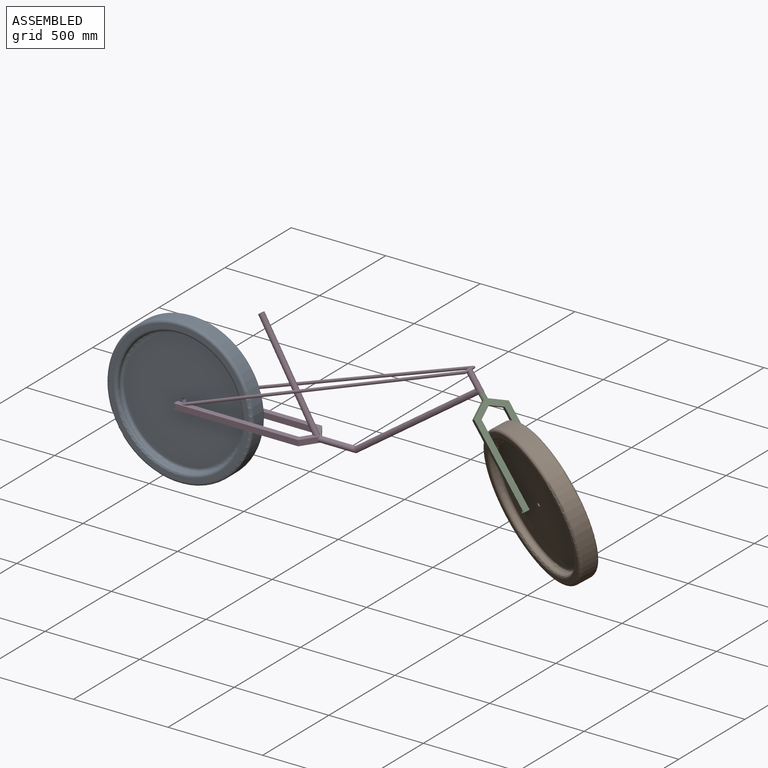
[diagram: assembled view]
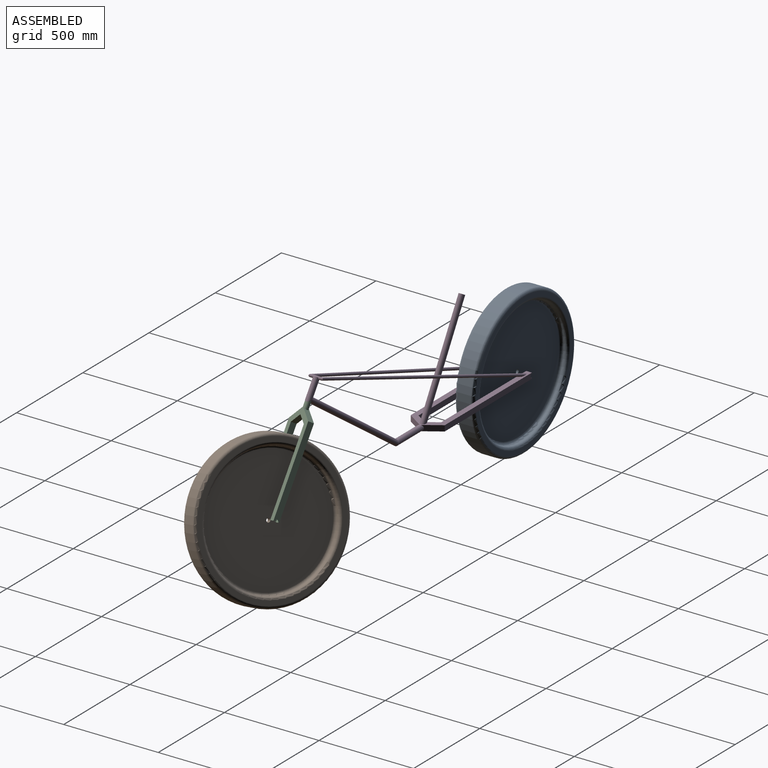
[diagram: assembled view, second angle]
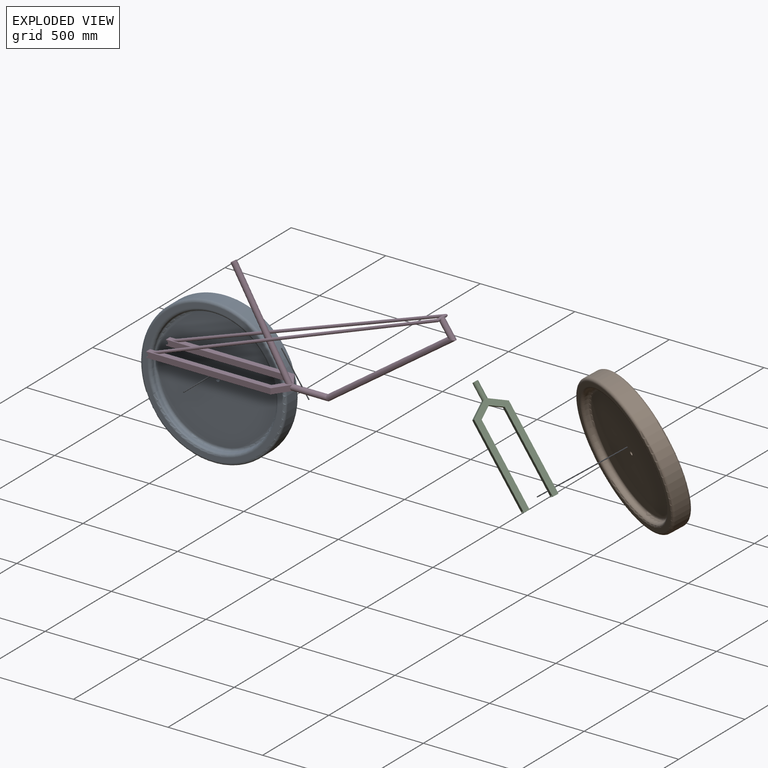
[diagram: exploded view]
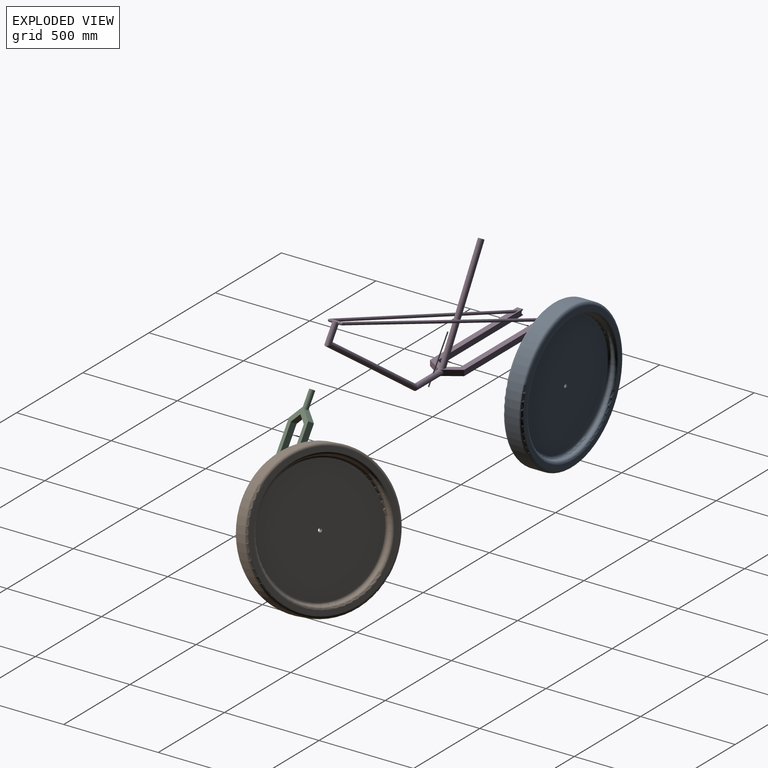
[diagram: exploded view, second angle]
ASSEMBLY  parts=4 mates=3
PART A: 14 faces, bbox 833.9x101x833.9 mm
  f0: cylinder r=10mm len=25mm, axis (0,-1,0), area 1570.8mm2, adj f1,f2
  f1: plane 630.4x630.4mm, normal (0,1,0), area 311806.3mm2, adj f0,f13
  f2: plane 630.4x630.4mm, normal (0,-1,0), area 311806.3mm2, adj f0,f8
  f3: cylinder r=330.2mm len=660.4mm, axis (0,1,0), area 16597.7mm2, adj f9,f13
  f4: cylinder r=330.2mm len=660.4mm, axis (0,1,0), area 16597.7mm2, adj f8,f11
  f5: cylinder r=385.2mm len=770.4mm, axis (0,1,0), area 171840.1mm2, adj f10,f12
  f6: plane 740.4x740.4mm, normal (0,-1,0), area 56187.4mm2, adj f11,f12
  f7: plane 740.4x740.4mm, normal (0,1,0), area 56187.4mm2, adj f9,f10
  f8: torus R=315.2mm, axis (0,-1,0), area 48077.2mm2, adj f2,f4
  f9: torus R=345.2mm, axis (0,-1,0), area 49691.1mm2, adj f3,f7
  f10: torus R=370.2mm, axis (0,-1,0), area 56219.6mm2, adj f5,f7
  f11: torus R=345.2mm, axis (0,-1,0), area 49691.1mm2, adj f4,f6
  f12: torus R=370.2mm, axis (0,-1,0), area 56219.6mm2, adj f5,f6
  f13: torus R=315.2mm, axis (0,-1,0), area 48077.2mm2, adj f1,f3
PART B: same geometry as A
PART C: 39 faces, bbox 180x30x599.7 mm
  f0: plane 30x5mm, normal (0,0,-1), area 72mm2, adj f2,f3,f10,f14,f15,f23,f37,f38
  f1: plane 30x5mm, normal (0,0,-1), area 72mm2, adj f8,f9,f11,f20,f21,f22,f35,f36
  f2: plane 458.05x30mm, normal (1,0,0), area 13584.4mm2, adj f0,f5,f8,f10,f12,f38
  f3: plane 441.95x30mm, normal (-1,0,0), area 13101.4mm2, adj f0,f4,f8,f10,f12,f37
  f4: plane 60x39.8mm, normal (-0.55,0,-0.83), area 2160mm2, adj f3,f6,f8,f10
  f5: plane 90x59.7mm, normal (0.55,0,0.83), area 2870.5mm2, adj f2,f7,f8,f10,f31
  f6: plane 60x39.8mm, normal (0.55,0,-0.83), area 2160mm2, adj f4,f8,f9,f10
  f7: plane 90x59.7mm, normal (-0.55,0,0.83), area 2870.5mm2, adj f5,f8,f10,f11,f31
  f8: plane 517.75x180mm, normal (0,1,0), area 32400mm2, adj f1,f2,f3,f4,f5,f6,f7,f9
  f9: plane 441.95x30mm, normal (1,0,0), area 13101.4mm2, adj f1,f6,f8,f10,f13,f36
  f10: plane 517.75x180mm, normal (0,-1,0), area 32400mm2, adj f0,f2,f3,f4,f5,f6,f7,f9
  f11: plane 458.05x30mm, normal (-1,0,0), area 13584.4mm2, adj f1,f7,f8,f10,f13,f35
  f12: plane 30x5mm, normal (0,0,-1), area 72mm2, adj f2,f3,f8,f14,f15,f21,f37,f38
  f13: plane 30x5mm, normal (0,0,-1), area 72mm2, adj f9,f10,f11,f20,f22,f23,f35,f36
  f14: plane 456.98x26mm, normal (-1,0,0), area 11724.3mm2, adj f0,f12,f17,f21,f23,f38
  f15: plane 443.02x26mm, normal (1,0,0), area 11361.5mm2, adj f0,f12,f16,f21,f23,f37
  f16: plane 62x41.13mm, normal (0.55,0,0.83), area 1934.4mm2, adj f15,f18,f21,f23
  f17: plane 82.8x54.93mm, normal (-0.55,0,-0.83), area 2384.5mm2, adj f14,f21,f23,f25
  f18: plane 62x41.13mm, normal (-0.55,0,0.83), area 1934.4mm2, adj f16,f20,f21,f23
  f19: plane 82.8x54.93mm, normal (0.55,0,-0.83), area 2384.5mm2, adj f21,f22,f23,f24
  f20: plane 443.02x26mm, normal (-1,0,0), area 11361.5mm2, adj f1,f13,f18,f21,f23,f36
  f21: plane 511.9x176mm, normal (0,-1,0), area 27935.8mm2, adj f1,f12,f14,f15,f16,f17,f18,f19
  f22: plane 456.98x26mm, normal (1,0,0), area 11724.3mm2, adj f1,f13,f19,f21,f23,f35
  f23: plane 511.9x176mm, normal (0,1,0), area 27935.8mm2, adj f0,f13,f14,f15,f16,f17,f18,f19
  f24: cylinder r=14mm len=26mm, axis (0,0,-1), area 278.6mm2, adj f19,f21,f23,f26
  f25: cylinder r=14mm len=26mm, axis (0,0,-1), area 278.6mm2, adj f17,f21,f23,f26
  f26: plane 28x26mm, normal (0,0,-1), area 149.4mm2, adj f21,f23,f24,f25,f27
  f27: cylinder r=12mm len=24mm, axis (0,0,-1), area 794.1mm2, adj f26,f28,f29
  f28: plane 24x12mm, normal (0.55,0,-0.83), area 271.4mm2, adj f27,f29
  f29: plane 24x12mm, normal (-0.55,0,-0.83), area 271.4mm2, adj f27,f28
  f30: cylinder r=12mm len=89.99mm, axis (0,0,-1), area 6564.7mm2, adj f32,f33,f34
  f31: cylinder r=14mm len=91.32mm, axis (0,0,-1), area 7733.1mm2, adj f5,f7,f32
  f32: plane 28x28mm, normal (0,0,1), area 163.4mm2, adj f30,f31
  f33: plane 24x12mm, normal (-0.55,0,0.83), area 271.4mm2, adj f30,f34
  f34: plane 24x12mm, normal (0.55,0,0.83), area 271.4mm2, adj f30,f33
  f35: cylinder r=10mm len=20mm, axis (1,0,0), area 62.8mm2, adj f1,f11,f13,f22
  f36: cylinder r=10mm len=20mm, axis (1,0,0), area 62.8mm2, adj f1,f9,f13,f20
  f37: cylinder r=10mm len=20mm, axis (1,0,0), area 62.8mm2, adj f0,f3,f12,f15
  f38: cylinder r=10mm len=20mm, axis (1,0,0), area 62.8mm2, adj f0,f2,f12,f14
PART D: 77 faces, bbox 1578.5x182.3x567.6 mm
  f0: plane 30x5mm, normal (-1,0,0), area 72mm2, adj f10,f11,f13,f22,f23,f32,f56,f57
  f1: plane 30x5mm, normal (-1,0,0), area 72mm2, adj f12,f18,f19,f24,f29,f30,f55,f58
  f2: plane 25.98x6.14mm, normal (-0.57,0,0.82), area 56.3mm2, adj f5,f8,f46
  f3: cylinder r=13mm len=194.75mm, axis (1,0,0), area 15314.4mm2, adj f6,f42,f43
  f4: cylinder r=15mm len=196.72mm, axis (1,0,0), area 17750.1mm2, adj f9,f25,f27
  f5: cylinder r=13mm len=107.48mm, axis (-0.57,0,0.82), area 7983.2mm2, adj f2,f6,f7,f46
  f6: cylinder r=13mm len=684.25mm, axis (0.82,0,0.57), area 65345.1mm2, adj f3,f5
  f7: plane 25.98x6.14mm, normal (-0.57,0,0.82), area 56.3mm2, adj f5,f8,f46
  f8: cylinder r=15mm len=111.42mm, axis (-0.57,0,0.82), area 9242.2mm2, adj f2,f7,f9,f46
  f9: cylinder r=15mm len=688.7mm, axis (0.82,0,0.57), area 75398.3mm2, adj f4,f8
  f10: plane 711.95x81.83mm, normal (0,0,-1), area 18333.7mm2, adj f0,f11,f13,f14,f15,f33,f35,f48
  f11: plane 657.23x26mm, normal (0,-1,0), area 16930.8mm2, adj f0,f10,f12,f14,f20,f57
  f12: plane 712.95x178.31mm, normal (0,0,1), area 38161mm2, adj f1,f11,f13,f14,f15,f16,f17,f18
  f13: plane 643.27x26mm, normal (0,1,0), area 16568mm2, adj f0,f10,f12,f15,f20,f56
  f14: plane 80.52x53.41mm, normal (-0.83,-0.55,0), area 2345.8mm2, adj f10,f11,f12,f35
  f15: plane 63.84x42.97mm, normal (0.83,0.55,0), area 1838.3mm2, adj f10,f12,f13,f17,f33
  f16: plane 80.52x53.41mm, normal (-0.83,0.55,0), area 2345.8mm2, adj f12,f19,f31,f34
  f17: plane 63.84x42.97mm, normal (0.83,-0.55,0), area 1838.3mm2, adj f12,f15,f18,f31,f33
  f18: plane 643.27x26mm, normal (0,-1,0), area 16568mm2, adj f1,f12,f17,f21,f31,f55
  f19: plane 657.23x26mm, normal (0,1,0), area 16930.8mm2, adj f1,f12,f16,f21,f31,f58
  f20: plane 30x5mm, normal (-1,0,0), area 72mm2, adj f11,f12,f13,f22,f23,f24,f56,f57
  f21: plane 30x5mm, normal (-1,0,0), area 72mm2, adj f18,f19,f29,f30,f31,f32,f55,f58
  f22: plane 658.3x30mm, normal (0,1,0), area 19591.9mm2, adj f0,f20,f24,f25,f32,f57
  f23: plane 642.2x30mm, normal (0,-1,0), area 19108.9mm2, adj f0,f20,f24,f26,f32,f56
  f24: plane 718x180mm, normal (0,0,-1), area 44415mm2, adj f1,f20,f22,f23,f25,f26,f27,f28
  f25: plane 90x59.7mm, normal (0.83,0.55,0), area 2815.9mm2, adj f4,f22,f24,f32
  f26: plane 61.53x41.33mm, normal (-0.83,-0.55,0), area 2085.7mm2, adj f23,f24,f28,f32,f38
  f27: plane 90x59.7mm, normal (0.83,-0.55,0), area 2815.9mm2, adj f4,f24,f30,f32
  f28: plane 61.53x41.33mm, normal (-0.83,0.55,0), area 2085.7mm2, adj f24,f26,f29,f32,f38
  f29: plane 642.2x30mm, normal (0,1,0), area 19108.9mm2, adj f1,f21,f24,f28,f32,f55
  f30: plane 658.3x30mm, normal (0,-1,0), area 19591.9mm2, adj f1,f21,f24,f27,f32,f58
  f31: plane 711.95x81.83mm, normal (0,0,-1), area 18333.7mm2, adj f16,f17,f18,f19,f21,f33,f34,f47
  f32: plane 718x180mm, normal (0,0,1), area 42629mm2, adj f0,f21,f22,f23,f25,f26,f27,f28
  f33: cylinder r=15mm len=39.55mm, axis (0.5,0,-0.87), area 1255.1mm2, adj f10,f12,f15,f17,f31,f34,f35
  f34: cylinder r=15mm len=26mm, axis (1,0,0), area 232mm2, adj f12,f16,f31,f33
  f35: cylinder r=15mm len=26mm, axis (1,0,0), area 232mm2, adj f10,f12,f14,f33
  f36: cylinder r=13mm len=524.18mm, axis (0.5,0,-0.87), area 47666.5mm2, adj f37,f39,f40,f41
  f37: plane 30x25.98mm, normal (-0.5,0,0.87), area 175.9mm2, adj f36,f38
  f38: cylinder r=15mm len=527.18mm, axis (0.5,0,-0.87), area 55054.7mm2, adj f26,f28,f32,f37
  f39: plane 28.33x26mm, normal (0,0,1), area 575.5mm2, adj f36,f40,f41
  f40: plane 10.84x7.02mm, normal (-0.83,-0.55,0), area 39mm2, adj f36,f39,f41
  f41: plane 10.84x7.02mm, normal (-0.83,0.55,0), area 39mm2, adj f36,f39,f40
  f42: plane 26x13mm, normal (0.83,-0.55,0), area 318.6mm2, adj f3,f43
  f43: plane 26x13mm, normal (0.83,0.55,0), area 318.6mm2, adj f3,f42
  f44: cylinder r=7.5mm len=1487.93mm, axis (-0.94,0.03,-0.34), area 72984.8mm2, adj f32,f46
  f45: cylinder r=7.5mm len=1488.19mm, axis (0.94,0.03,0.34), area 72984.4mm2, adj f32,f46
  f46: cylinder r=7.5mm len=74.58mm, axis (0,1,0), area 2725mm2, adj f2,f5,f7,f8,f44,f45
  f47: cylinder r=7.5mm len=54.45mm, axis (0.94,0.03,0.34), area 1409.3mm2, adj f31,f52
  f48: cylinder r=7.5mm len=54.71mm, axis (-0.94,0.03,-0.34), area 1409mm2, adj f10,f49
  f49: cylinder r=10mm len=15.01mm, axis (0,-1,0), area 93.9mm2, adj f48,f51
  f50: plane 32.4x11.04mm, normal (0,0,-1), area 280mm2, adj f51
  f51: cylinder r=5.5mm len=46.43mm, axis (-0.94,0.03,-0.34), area 1005.7mm2, adj f49,f50
  f52: cylinder r=10mm len=15.01mm, axis (0,-1,0), area 94mm2, adj f47,f54
  f53: plane 32.4x11.04mm, normal (0,0,-1), area 280mm2, adj f54
  f54: cylinder r=5.5mm len=46.24mm, axis (0.94,0.03,0.34), area 1005.7mm2, adj f52,f53
  f55: cylinder r=10mm len=20mm, axis (0,-1,0), area 62.8mm2, adj f1,f18,f21,f29
  f56: cylinder r=10mm len=20mm, axis (0,-1,0), area 62.8mm2, adj f0,f13,f20,f23
  f57: cylinder r=10mm len=20mm, axis (0,-1,0), area 62.8mm2, adj f0,f11,f20,f22
  f58: cylinder r=10mm len=20mm, axis (0,-1,0), area 62.8mm2, adj f1,f19,f21,f30
  f59: cylinder r=5.5mm len=1479.53mm, axis (-0.94,0.03,-0.34), area 53524.4mm2, adj f61,f63
  f60: cylinder r=5.5mm len=1479.72mm, axis (0.94,0.03,0.34), area 53524.2mm2, adj f61,f62
  f61: cylinder r=5.5mm len=70.7mm, axis (0,1,0), area 2001.4mm2, adj f59,f60,f64,f65,f66,f67,f68,f69
  f62: plane 32.4x11.04mm, normal (0,0,1), area 280mm2, adj f60
  f63: plane 32.4x11.04mm, normal (0,0,1), area 280mm2, adj f59
  f64: cylinder r=15mm len=12.17mm, axis (-0.57,0,0.82), area 48.3mm2, adj f61,f65
  f65: plane 9.01x6.31mm, normal (-0.57,0,0.82), area 22.6mm2, adj f61,f64,f66
  f66: cylinder r=13mm len=12.17mm, axis (-0.57,0,0.82), area 48.6mm2, adj f61,f65
  f67: cylinder r=15mm len=12.17mm, axis (-0.57,0,0.82), area 48.3mm2, adj f61,f68
  f68: plane 9.01x6.31mm, normal (-0.57,0,0.82), area 22.6mm2, adj f61,f67,f69
  f69: cylinder r=13mm len=12.17mm, axis (-0.57,0,0.82), area 48.6mm2, adj f61,f68
  f70: plane 27.71x26mm, normal (0,0,-1), area 559.4mm2, adj f71,f72,f73
  f71: plane 13.31x8.27mm, normal (0.83,0.55,0), area 55.8mm2, adj f70,f72,f73
  f72: plane 13.31x8.27mm, normal (0.83,-0.55,0), area 55.8mm2, adj f70,f71,f73
  f73: cylinder r=13mm len=38.09mm, axis (0.5,0,-0.87), area 1122.1mm2, adj f70,f71,f72,f74
  f74: cylinder r=13mm len=26mm, axis (1,0,0), area 825.8mm2, adj f73,f75,f76
  f75: plane 26x13mm, normal (-0.83,-0.55,0), area 318.6mm2, adj f74,f76
  f76: plane 26x13mm, normal (-0.83,0.55,0), area 318.6mm2, adj f74,f75
PLACE A rot(axis=(0,-1,0),19.7deg) t=(-840.19,47.42,30.8)mm
PLACE B rot(axis=(0.13,-0.81,-0.57),53.9deg) t=(1036.15,50.18,34.37)mm
PLACE C rot(axis=(0.3,-0.17,-0.94),123.6deg) t=(748.02,47.1,442.7)mm
PLACE D t=(59.81,47.1,30.8)mm fixed
MATE cylindrical C.f24 <-> D.f5  axis (0.57,0,-0.82) through (717,47.1,487)mm
MATE cylindrical B.f0 <-> C.f35  axis (-0.42,-0.86,-0.29) through (1030.94,39.41,30.72)mm
MATE cylindrical D.f49 <-> A.f0  axis (0,-1,0) through (-840.19,-42.9,30.8)mm
